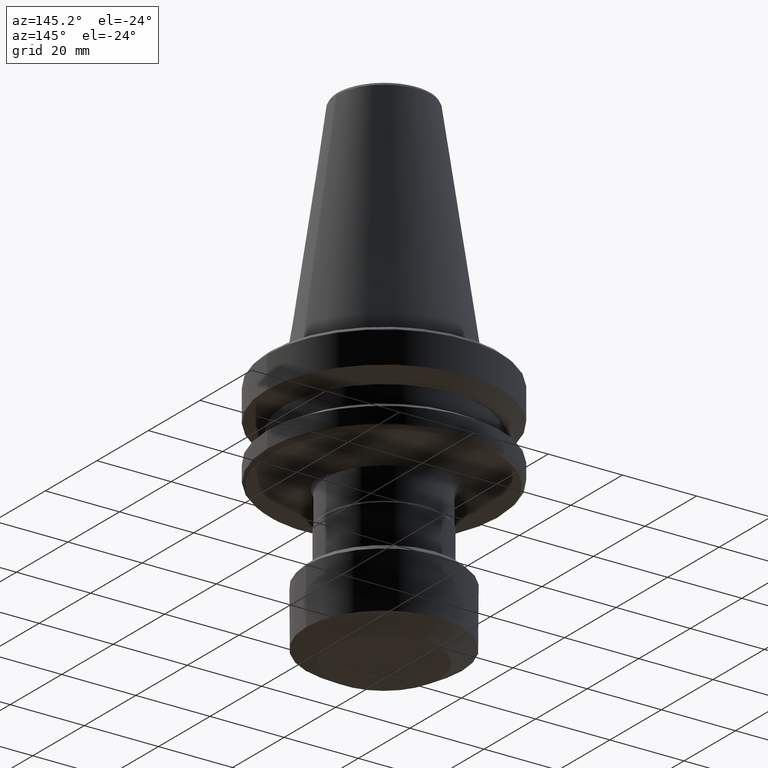
[diagram: clean part render]
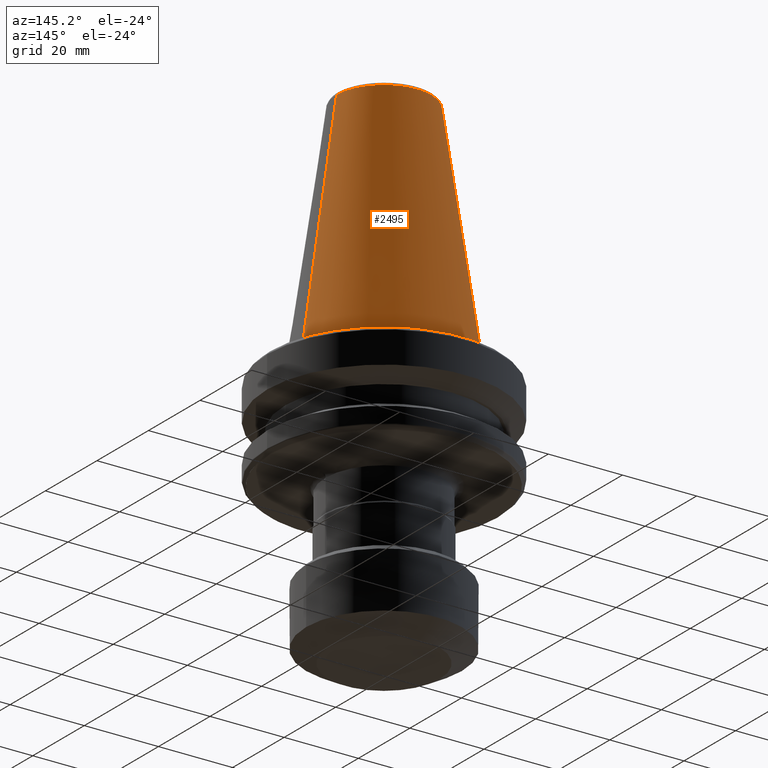
[diagram: same view with one face highlighted and labeled with its STEP entity id]
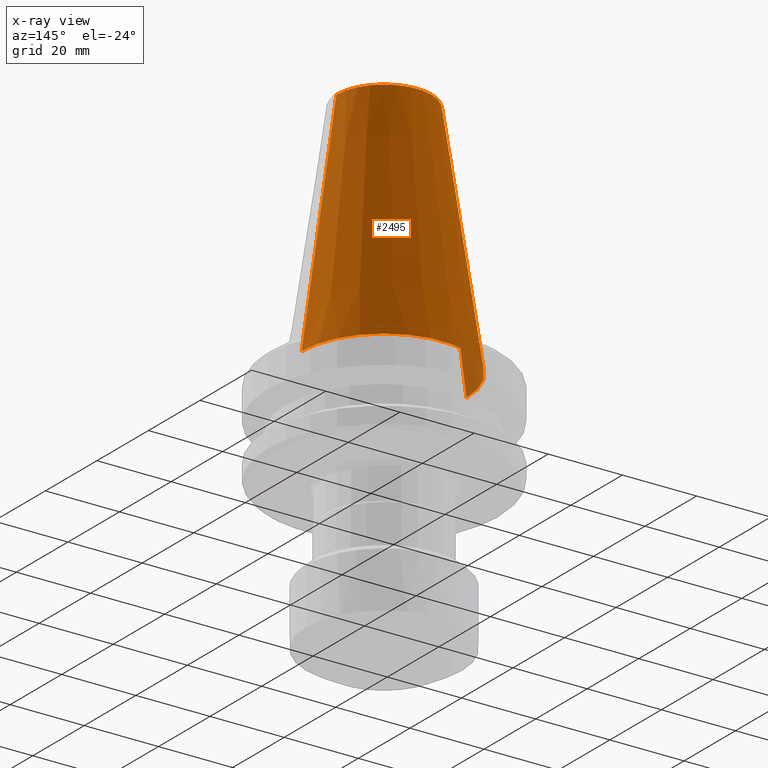
[diagram: x-ray of the same camera — body ghosted, the highlighted face saturated]
A machine part, auxiliary view. The second image highlights one B-rep face of the part: STEP entity #2495.
The next image is the same camera in x-ray: the body ghosted, the highlighted face saturated — about 2% of this face is hidden behind the body in this view.
In plain terms, the highlighted conical surface has half-angle 8.297 deg.
Its self-contained STEP definition (entity closure, byte-faithful):
#38 = CONICAL_SURFACE ( 'NONE', #317, 12.81219950700000100, 0.1448138465489547400 ) ;
#44 = EDGE_CURVE ( 'NONE', #1903, #810, #759, .T. ) ;
#59 = FACE_OUTER_BOUND ( 'NONE', #2611, .T. ) ;
#181 = CIRCLE ( 'NONE', #540, 12.81219950700000100 ) ;
#243 = LINE ( 'NONE', #1664, #259 ) ;
#259 = VECTOR ( 'NONE', #313, 1000.000000000000000 ) ;
#313 = DIRECTION ( 'NONE',  ( -0.1443082272688266400, 0.0000000000000000000, -0.9895327864919528600 ) ) ;
#317 = AXIS2_PLACEMENT_3D ( 'NONE', #2638, #871, #380 ) ;
#380 = DIRECTION ( 'NONE',  ( -1.000000000000000000, 0.0000000000000000000, 0.0000000000000000000 ) ) ;
#540 = AXIS2_PLACEMENT_3D ( 'NONE', #1926, #650, #2106 ) ;
#589 = CIRCLE ( 'NONE', #2440, 22.22499999999999400 ) ;
#650 = DIRECTION ( 'NONE',  ( -0.0000000000000000000, -0.0000000000000000000, 1.000000000000000000 ) ) ;
#749 = VECTOR ( 'NONE', #1946, 1000.000000000000000 ) ;
#759 = LINE ( 'NONE', #2095, #749 ) ;
#810 = VERTEX_POINT ( 'NONE', #1616 ) ;
#858 = EDGE_CURVE ( 'NONE', #1835, #810, #589, .T. ) ;
#871 = DIRECTION ( 'NONE',  ( 0.0000000000000000000, 0.0000000000000000000, -1.000000000000000000 ) ) ;
#880 = ORIENTED_EDGE ( 'NONE', *, *, #44, .T. ) ;
#910 = VERTEX_POINT ( 'NONE', #1190 ) ;
#1161 = ORIENTED_EDGE ( 'NONE', *, *, #858, .F. ) ;
#1190 = CARTESIAN_POINT ( 'NONE',  ( 48.92121429925030200, 81.23534176543890300, 131.6122465090440700 ) ) ;
#1318 = DIRECTION ( 'NONE',  ( -1.000000000000000000, 0.0000000000000000000, 0.0000000000000000000 ) ) ;
#1320 = DIRECTION ( 'NONE',  ( 0.0000000000000000000, 0.0000000000000000000, -1.000000000000000000 ) ) ;
#1419 = CARTESIAN_POINT ( 'NONE',  ( 61.73341380625030400, 81.23534176582239800, 67.06793828204411100 ) ) ;
#1538 = CARTESIAN_POINT ( 'NONE',  ( 39.50841380625031000, 81.23534176582239800, 67.06793828204411100 ) ) ;
#1616 = CARTESIAN_POINT ( 'NONE',  ( 83.95841380625029200, 81.23534176582239800, 67.06793828204411100 ) ) ;
#1664 = CARTESIAN_POINT ( 'NONE',  ( 48.92121429925030200, 81.23534176582239800, 131.6122465090441000 ) ) ;
#1835 = VERTEX_POINT ( 'NONE', #1538 ) ;
#1841 = ORIENTED_EDGE ( 'NONE', *, *, #2210, .F. ) ;
#1903 = VERTEX_POINT ( 'NONE', #2027 ) ;
#1926 = CARTESIAN_POINT ( 'NONE',  ( 61.73341380625030400, 81.23534176582239800, 131.6122465090440700 ) ) ;
#1946 = DIRECTION ( 'NONE',  ( 0.1443082272688266400, 1.767266086153973400E-017, -0.9895327864919528600 ) ) ;
#1961 = EDGE_CURVE ( 'NONE', #910, #1835, #243, .T. ) ;
#2027 = CARTESIAN_POINT ( 'NONE',  ( 74.54561331325031400, 81.23534176582239800, 131.6122465090441000 ) ) ;
#2095 = CARTESIAN_POINT ( 'NONE',  ( 74.54561331325031400, 81.23534176582239800, 131.6122465090441000 ) ) ;
#2106 = DIRECTION ( 'NONE',  ( -1.000000000000000000, 0.0000000000000000000, 2.166339635943425300E-015 ) ) ;
#2137 = ORIENTED_EDGE ( 'NONE', *, *, #1961, .F. ) ;
#2210 = EDGE_CURVE ( 'NONE', #1903, #910, #181, .T. ) ;
#2440 = AXIS2_PLACEMENT_3D ( 'NONE', #1419, #1320, #1318 ) ;
#2495 = ADVANCED_FACE ( 'NONE', ( #59 ), #38, .T. ) ;
#2611 = EDGE_LOOP ( 'NONE', ( #1841, #880, #1161, #2137 ) ) ;
#2638 = CARTESIAN_POINT ( 'NONE',  ( 61.73341380625030400, 81.23534176582239800, 131.6122465090441000 ) ) ;